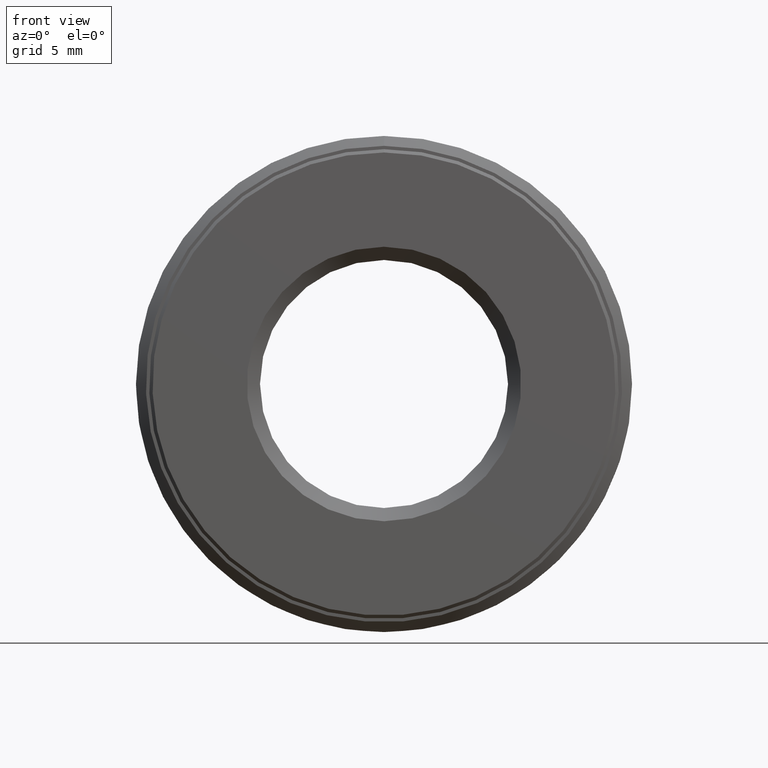
[diagram: clean part render]
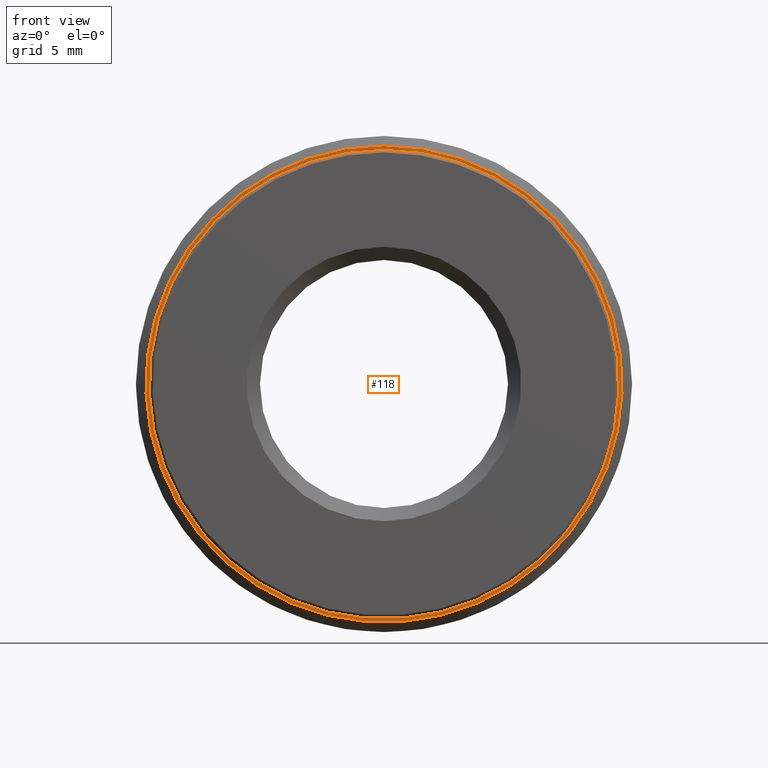
[diagram: same view with one face highlighted and labeled with its STEP entity id]
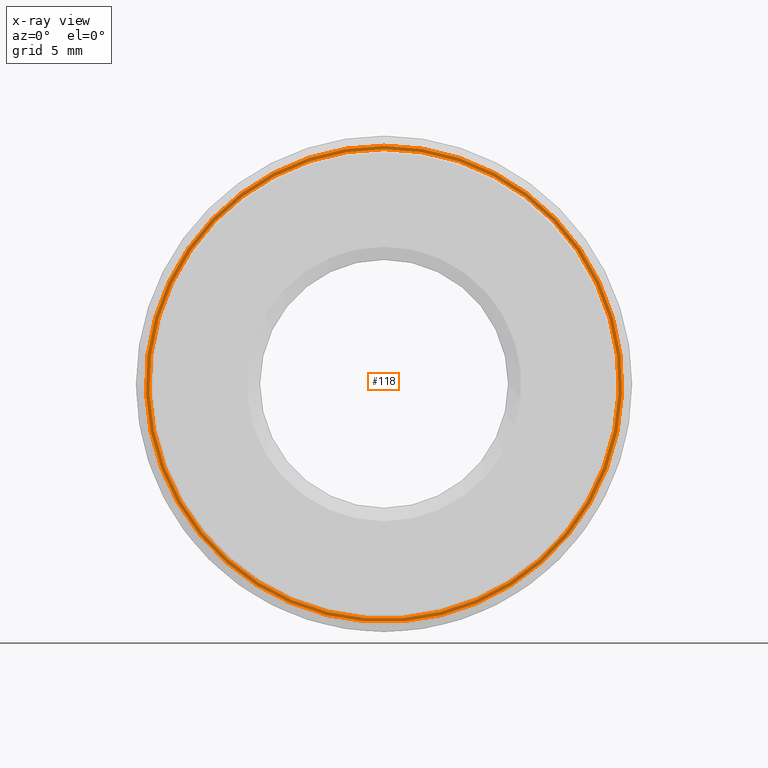
[diagram: x-ray of the same camera — body ghosted, the highlighted face saturated]
A machine part, front view. The second image highlights one B-rep face of the part: STEP entity #118.
The next image is the same camera in x-ray: the body ghosted, the highlighted face saturated — about 0% of this face is hidden behind the body in this view.
In plain terms, the highlighted planar face has unit normal (-0, 1, 0).
Its self-contained STEP definition (entity closure, byte-faithful):
#14 = ORIENTED_EDGE ( 'NONE', *, *, #332, .T. ) ;
#23 = VERTEX_POINT ( 'NONE', #339 ) ;
#29 = CARTESIAN_POINT ( 'NONE',  ( -6.663504083101786500E-033, -2.161650903762001200E-017, 0.0000000000000000000 ) ) ;
#70 = EDGE_LOOP ( 'NONE', ( #14 ) ) ;
#118 = ADVANCED_FACE ( 'NONE', ( #182, #215 ), #311, .F. ) ;
#123 = DIRECTION ( 'NONE',  ( -0.0000000000000000000, 1.000000000000000000, -0.0000000000000000000 ) ) ;
#165 = VERTEX_POINT ( 'NONE', #384 ) ;
#178 = DIRECTION ( 'NONE',  ( -0.0000000000000000000, 1.000000000000000000, 0.0000000000000000000 ) ) ;
#182 = FACE_OUTER_BOUND ( 'NONE', #213, .T. ) ;
#213 = EDGE_LOOP ( 'NONE', ( #234 ) ) ;
#215 = FACE_BOUND ( 'NONE', #70, .T. ) ;
#234 = ORIENTED_EDGE ( 'NONE', *, *, #254, .F. ) ;
#254 = EDGE_CURVE ( 'NONE', #165, #165, #514, .T. ) ;
#283 = AXIS2_PLACEMENT_3D ( 'NONE', #489, #123, #588 ) ;
#311 = PLANE ( 'NONE',  #531 ) ;
#332 = EDGE_CURVE ( 'NONE', #23, #23, #525, .T. ) ;
#339 = CARTESIAN_POINT ( 'NONE',  ( 0.0000000000000000000, -2.189045562473796700E-017, 0.3550000000000000400 ) ) ;
#354 = AXIS2_PLACEMENT_3D ( 'NONE', #355, #582, #535 ) ;
#355 = CARTESIAN_POINT ( 'NONE',  ( 0.0000000000000000000, -2.189045562473796700E-017, 0.0000000000000000000 ) ) ;
#384 = CARTESIAN_POINT ( 'NONE',  ( 0.0000000000000000000, -2.134256245050205600E-017, 0.3600000000000000400 ) ) ;
#489 = CARTESIAN_POINT ( 'NONE',  ( 0.0000000000000000000, -2.134256245050205600E-017, 0.0000000000000000000 ) ) ;
#514 = CIRCLE ( 'NONE', #283, 0.3600000000000000400 ) ;
#525 = CIRCLE ( 'NONE', #354, 0.3550000000000000400 ) ;
#531 = AXIS2_PLACEMENT_3D ( 'NONE', #29, #178, #591 ) ;
#535 = DIRECTION ( 'NONE',  ( 0.0000000000000000000, 0.0000000000000000000, 1.000000000000000000 ) ) ;
#582 = DIRECTION ( 'NONE',  ( -0.0000000000000000000, 1.000000000000000000, -0.0000000000000000000 ) ) ;
#588 = DIRECTION ( 'NONE',  ( 0.0000000000000000000, 0.0000000000000000000, 1.000000000000000000 ) ) ;
#591 = DIRECTION ( 'NONE',  ( 0.0000000000000000000, 0.0000000000000000000, 1.000000000000000000 ) ) ;